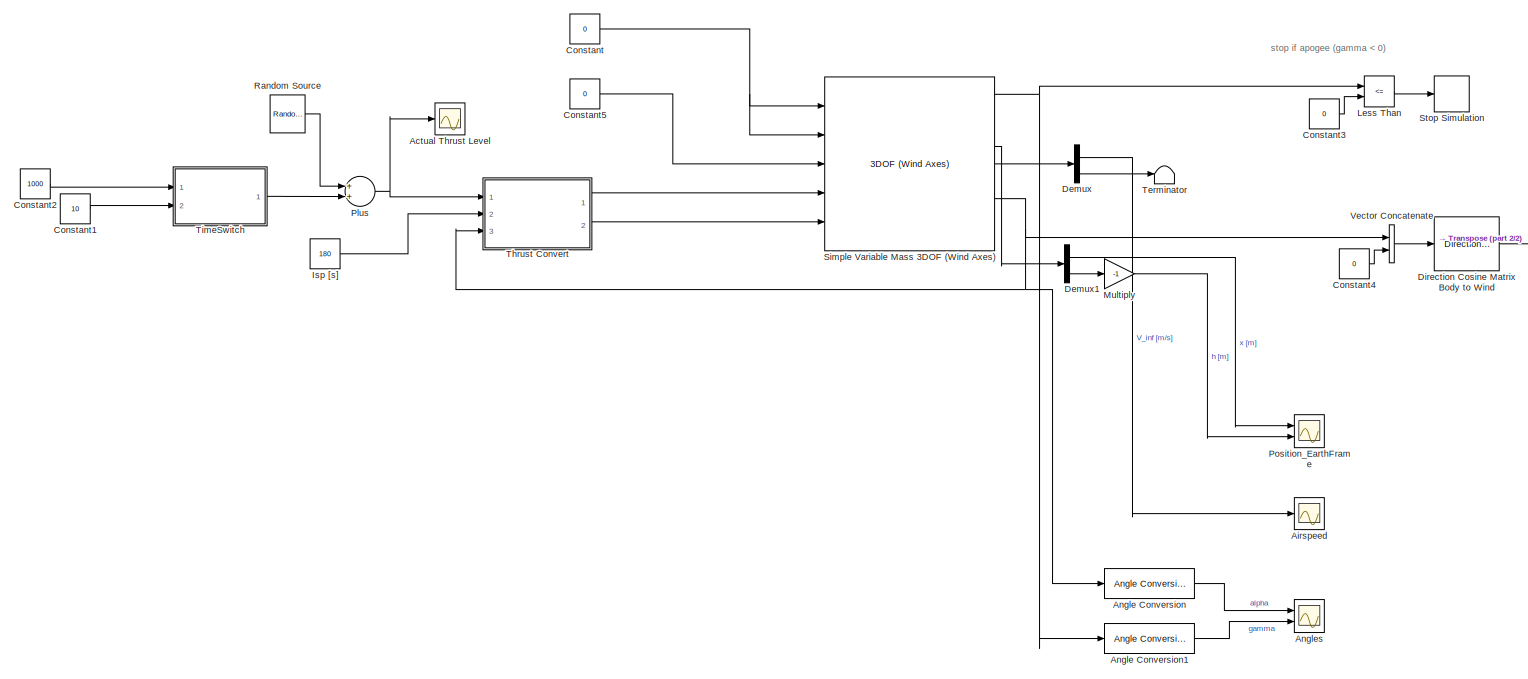
[diagram: root canvas - part 1/2, most of the canvas]
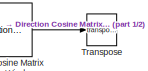
[diagram: root canvas - part 2/2, middle right region]
MODEL slx_98f3c68410e6
KIND model
CONFIG AbsTol = auto
CONFIG EnableMultiTasking = off
CONFIG FixedStep = auto
CONFIG InitFcn = Sporadic_Impulse_3DOF_init
CONFIG MaxStep = auto
CONFIG MinStep = auto
CONFIG RelTol = 1e-3
CONFIG SampleTimeConstraint = Unconstrained
CONFIG Solver = VariableStepAuto
CONFIG SolverName = VariableStepAuto
CONFIG StartTime = 0.0
CONFIG StopTime = 40
BLOCK [Scope] Actual Thrust Level
  Floating = off
  NumInputPorts = 1
  Ports = [1]
  ScopeSpecificationString = Simulink.scopes.TimeScopeBlockCfg('CurrentConfiguration', extmgr.ConfigurationSet(extmgr.Configuration('Core','General UI',true),extmgr.Configuration('Core','Source UI',true),extmgr.Configuration('Sources','WiredSimulink',true,'DataLoggingVariableName','ScopeData1'),extmgr.Configuration('Visuals','Time Domain',true,'SerializedDisplays',{struct('MinYLimReal','-230.94143','MaxYLimReal','1211.39569',...<+1381ch>
BLOCK [Scope] Airspeed
  Floating = off
  NumInputPorts = 1
  Ports = [1]
  ScopeSpecificationString = Simulink.scopes.TimeScopeBlockCfg('CurrentConfiguration', extmgr.ConfigurationSet(extmgr.Configuration('Core','General UI',true),extmgr.Configuration('Core','Source UI',true),extmgr.Configuration('Sources','WiredSimulink',true,'DataLoggingVariableName','ScopeData1'),extmgr.Configuration('Visuals','Time Domain',true,'SerializedDisplays',{struct('MinYLimReal','-20.7907','MaxYLimReal','188.11626','YL...<+1378ch>
BLOCK [Reference] Angle Conversion  REF=aerolibconvert2/Angle Conversion
  Ports = [1, 1]
  SourceBlock = aerolibconvert2/Angle Conversion
  SourceProductBaseCode = AE
  SourceProductName = Aerospace Blockset
  SourceType = Angle Conversion
BLOCK [Reference] Angle Conversion1  REF=aerolibconvert2/Angle Conversion
  Ports = [1, 1]
  SourceBlock = aerolibconvert2/Angle Conversion
  SourceProductBaseCode = AE
  SourceProductName = Aerospace Blockset
  SourceType = Angle Conversion
BLOCK [Scope] Angles
  Floating = off
  NumInputPorts = 2
  Ports = [2]
  ScopeSpecificationString = Simulink.scopes.TimeScopeBlockCfg('CurrentConfiguration', extmgr.ConfigurationSet(extmgr.Configuration('Core','General UI',true),extmgr.Configuration('Core','Source UI',true),extmgr.Configuration('Sources','WiredSimulink',true,'DataLoggingVariableName','ScopeData1'),extmgr.Configuration('Visuals','Time Domain',true,'SerializedDisplays',{struct('MinYLimReal','-10.5','MaxYLimReal','94.5','YLabelReal...<+1380ch>
BLOCK [Constant] Constant
  Value = 0
BLOCK [Constant] Constant1
  Value = 10
BLOCK [Constant] Constant2
  Value = 1000
BLOCK [Constant] Constant3
  Value = 0
BLOCK [Constant] Constant4
  Value = 0
BLOCK [Constant] Constant5
  Value = 0
BLOCK [Demux] Demux
  DisplayOption = bar
  Outputs = 2
  Ports = [1, 2]
BLOCK [Demux] Demux1
  DisplayOption = bar
  Outputs = 2
  Ports = [1, 2]
BLOCK [Reference] Direction Cosine Matrix Body to Wind  REF=aerolibtransform2/Direction Cosine Matrix
Body to Wind
  Ports = [1, 1]
  SourceBlock = aerolibtransform2/Direction Cosine Matrix\nBody to Wind
  SourceProductBaseCode = AE
  SourceProductName = Aerospace Blockset
  SourceType = DCM Body to Wind
BLOCK [Constant] Isp [s]
  Value = 180
BLOCK [RelationalOperator] Less Than
  InputSameDT = off
  Operator = <=
  OutDataTypeStr = boolean
  Ports = [2, 1]
  RndMeth = Simplest
BLOCK [Gain] Multiply
  Gain = -1
  OutDataTypeStr = Inherit: Inherit via internal rule
  ParamDataTypeStr = Inherit: Inherit via internal rule
  SaturateOnIntegerOverflow = off
BLOCK [Sum] Plus
  InputSameDT = off
  OutDataTypeStr = Inherit: Inherit via internal rule
  Ports = [2, 1]
  SaturateOnIntegerOverflow = off
BLOCK [Scope] Position_EarthFrame
  Floating = off
  NumInputPorts = 2
  Ports = [2]
  ScopeSpecificationString = Simulink.scopes.TimeScopeBlockCfg('CurrentConfiguration', extmgr.ConfigurationSet(extmgr.Configuration('Core','General UI',true),extmgr.Configuration('Core','Source UI',true),extmgr.Configuration('Sources','WiredSimulink',true,'DataLoggingVariableName','ScopeData2'),extmgr.Configuration('Visuals','Time Domain',true,'SerializedDisplays',{struct('MinYLimReal','-272.12245','MaxYLimReal','2449.10206',...<+1441ch>
BLOCK [Reference] Random Source  REF=dspsrcs4/Random
Source
  Ports = [0, 1]
  SourceBlock = dspsrcs4/Random\nSource
  SourceProductBaseCode = DS
  SourceProductName = DSP System Toolbox
  SourceType = Random Source
  UserDataPersistent = on
BLOCK [Reference] Simple Variable Mass 3DOF (Wind Axes)  REF=aerolib3dof2/3DOF (Wind Axes)
  Ports = [5, 9]
  SourceBlock = aerolib3dof2/3DOF (Wind Axes)
  SourceProductBaseCode = AE
  SourceProductName = Aerospace Blockset
  SourceType = 3DOF Wind EoM
BLOCK [Stop] Stop Simulation
BLOCK [Terminator] Terminator
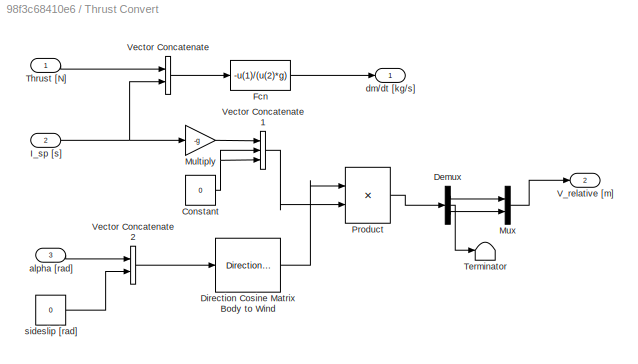
BLOCK [SubSystem] Thrust Convert
  Ports = [3, 2]
  RequestExecContextInheritance = off
BLOCK [Constant] Thrust Convert/Constant
  Value = 0
BLOCK [Demux] Thrust Convert/Demux
  DisplayOption = bar
  Outputs = 3
  Ports = [1, 3]
BLOCK [Reference] Thrust Convert/Direction Cosine Matrix Body to Wind  REF=aerolibtransform2/Direction Cosine Matrix
Body to Wind
  Ports = [1, 1]
  SourceBlock = aerolibtransform2/Direction Cosine Matrix\nBody to Wind
  SourceProductBaseCode = AE
  SourceProductName = Aerospace Blockset
  SourceType = DCM Body to Wind
BLOCK [Fcn] Thrust Convert/Fcn
  Expr = -u(1)/(u(2)*g)
BLOCK [Inport] Thrust Convert/I_sp [s]
  IconDisplay = Port number
  Port = 2
BLOCK [Gain] Thrust Convert/Multiply
  Gain = -g
  OutDataTypeStr = Inherit: Inherit via internal rule
  ParamDataTypeStr = Inherit: Inherit via internal rule
  SaturateOnIntegerOverflow = off
BLOCK [Mux] Thrust Convert/Mux
  DisplayOption = bar
  Inputs = 2
  Ports = [2, 1]
BLOCK [Product] Thrust Convert/Product
  InputSameDT = off
  Multiplication = Matrix(*)
  OutDataTypeStr = Inherit: Inherit via internal rule
  Ports = [2, 1]
  RndMeth = Floor
  SaturateOnIntegerOverflow = off
BLOCK [Terminator] Thrust Convert/Terminator
BLOCK [Inport] Thrust Convert/Thrust [N]
  IconDisplay = Port number
BLOCK [Outport] Thrust Convert/V_relative [m]
  IconDisplay = Port number
  Port = 2
BLOCK [Concatenate] Thrust Convert/Vector Concatenate
  Ports = [2, 1]
BLOCK [Concatenate] Thrust Convert/Vector Concatenate1
  NumInputs = 3
  Ports = [3, 1]
BLOCK [Concatenate] Thrust Convert/Vector Concatenate2
  Ports = [2, 1]
BLOCK [Inport] Thrust Convert/alpha [rad]
  IconDisplay = Port number
  Port = 3
BLOCK [Outport] Thrust Convert/dm//dt [kg//s]
  IconDisplay = Port number
BLOCK [Constant] Thrust Convert/sideslip [rad]
  Value = 0
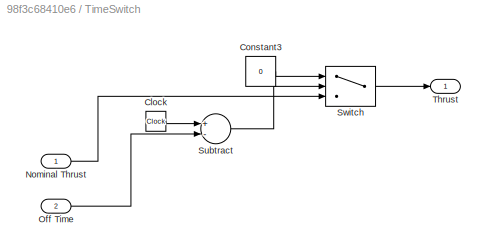
BLOCK [SubSystem] TimeSwitch 
  Ports = [2, 1]
  RequestExecContextInheritance = off
BLOCK [Clock] TimeSwitch /Clock
BLOCK [Constant] TimeSwitch /Constant3
  Value = 0
BLOCK [Inport] TimeSwitch /Nominal Thrust
  IconDisplay = Port number
BLOCK [Inport] TimeSwitch /Off Time
  IconDisplay = Port number
  Port = 2
BLOCK [Sum] TimeSwitch /Subtract
  InputSameDT = off
  Inputs = +-
  OutDataTypeStr = Inherit: Inherit via internal rule
  Ports = [2, 1]
  SaturateOnIntegerOverflow = off
BLOCK [Switch] TimeSwitch /Switch
  Criteria = u2 > Threshold
  InputSameDT = off
  SaturateOnIntegerOverflow = off
BLOCK [Outport] TimeSwitch /Thrust
  IconDisplay = Port number
BLOCK [Math] Transpose
  Operator = transpose
  Ports = [1, 1]
BLOCK [Concatenate] Vector Concatenate
  Ports = [2, 1]
ANNOTATION (root): stop if apogee (gamma < 0)
LINE Angle Conversion1:1 -> Angles:2
LINE Angle Conversion:1 -> Angles:1
LINE Constant1:1 -> TimeSwitch :2
LINE Constant2:1 -> TimeSwitch :1
LINE Constant3:1 -> Less Than:2
LINE Constant4:1 -> Vector Concatenate:2
LINE Constant5:1 -> Simple Variable Mass 3DOF (Wind Axes):3
NET Constant:1 -> Simple Variable Mass 3DOF (Wind Axes):1, Simple Variable Mass 3DOF (Wind Axes):2
LINE Demux1:1 -> Position_EarthFrame:1
LINE Demux1:2 -> Multiply:1
LINE Demux:1 -> Airspeed:1
LINE Demux:2 -> Terminator:1
LINE Direction Cosine Matrix Body to Wind:1 -> Transpose:1
LINE Isp [s]:1 -> Thrust Convert:2
LINE Less Than:1 -> Stop Simulation:1
LINE Multiply:1 -> Position_EarthFrame:2
NET Plus:1 -> Actual Thrust Level:1, Thrust Convert:1
LINE Random Source:1 -> Plus:1
NET Simple Variable Mass 3DOF (Wind Axes):1 -> Angle Conversion1:1, Less Than:1
LINE Simple Variable Mass 3DOF (Wind Axes):4 -> Demux1:1
LINE Simple Variable Mass 3DOF (Wind Axes):5 -> Demux:1
NET Simple Variable Mass 3DOF (Wind Axes):7 -> Angle Conversion:1, Thrust Convert:3, Vector Concatenate:1
NET Thrust Convert/Constant:1 -> Thrust Convert/Vector Concatenate1:2, Thrust Convert/Vector Concatenate1:3
LINE Thrust Convert/Demux:1 -> Thrust Convert/Mux:1
LINE Thrust Convert/Demux:2 -> Thrust Convert/Terminator:1
LINE Thrust Convert/Demux:3 -> Thrust Convert/Mux:2
LINE Thrust Convert/Direction Cosine Matrix Body to Wind:1 -> Thrust Convert/Product:1
LINE Thrust Convert/Fcn:1 -> Thrust Convert/dm//dt [kg//s]:1
NET Thrust Convert/I_sp [s]:1 -> Thrust Convert/Multiply:1, Thrust Convert/Vector Concatenate:2
LINE Thrust Convert/Multiply:1 -> Thrust Convert/Vector Concatenate1:1
LINE Thrust Convert/Mux:1 -> Thrust Convert/V_relative [m]:1
LINE Thrust Convert/Product:1 -> Thrust Convert/Demux:1
LINE Thrust Convert/Thrust [N]:1 -> Thrust Convert/Vector Concatenate:1
LINE Thrust Convert/Vector Concatenate1:1 -> Thrust Convert/Product:2
LINE Thrust Convert/Vector Concatenate2:1 -> Thrust Convert/Direction Cosine Matrix Body to Wind:1
LINE Thrust Convert/Vector Concatenate:1 -> Thrust Convert/Fcn:1
LINE Thrust Convert/alpha [rad]:1 -> Thrust Convert/Vector Concatenate2:1
LINE Thrust Convert/sideslip [rad]:1 -> Thrust Convert/Vector Concatenate2:2
LINE Thrust Convert:1 -> Simple Variable Mass 3DOF (Wind Axes):4
LINE Thrust Convert:2 -> Simple Variable Mass 3DOF (Wind Axes):5
LINE TimeSwitch /Clock:1 -> TimeSwitch /Subtract:1
LINE TimeSwitch /Constant3:1 -> TimeSwitch /Switch:1
LINE TimeSwitch /Nominal Thrust:1 -> TimeSwitch /Switch:3
LINE TimeSwitch /Off Time:1 -> TimeSwitch /Subtract:2
LINE TimeSwitch /Subtract:1 -> TimeSwitch /Switch:2
LINE TimeSwitch /Switch:1 -> TimeSwitch /Thrust:1
LINE TimeSwitch :1 -> Plus:2
LINE Vector Concatenate:1 -> Direction Cosine Matrix Body to Wind:1
note: NET lines group one-source signal fan-out (src -> all destinations, sorted); 1:1 wires keep LINE
